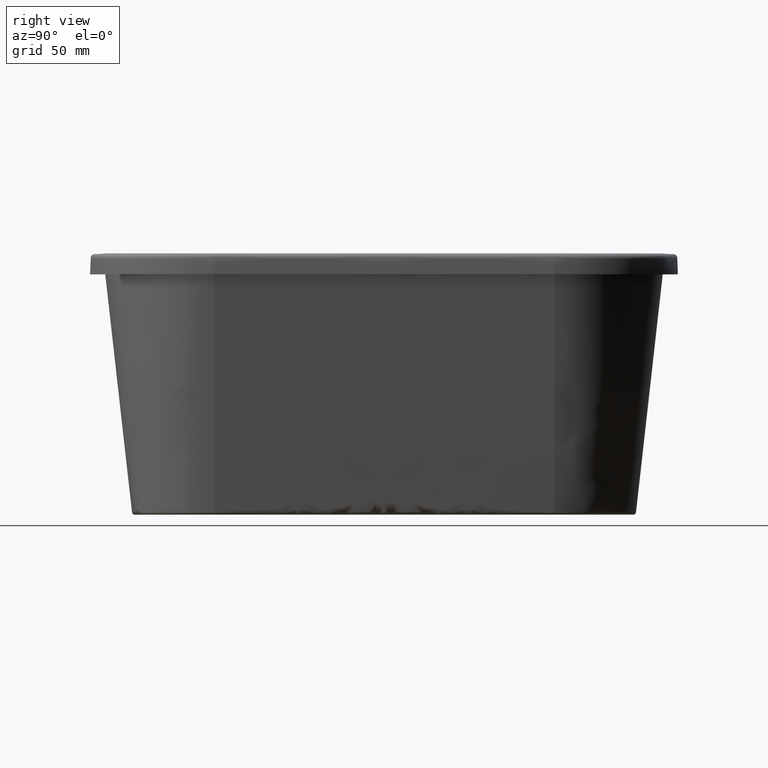
[diagram: clean part render]
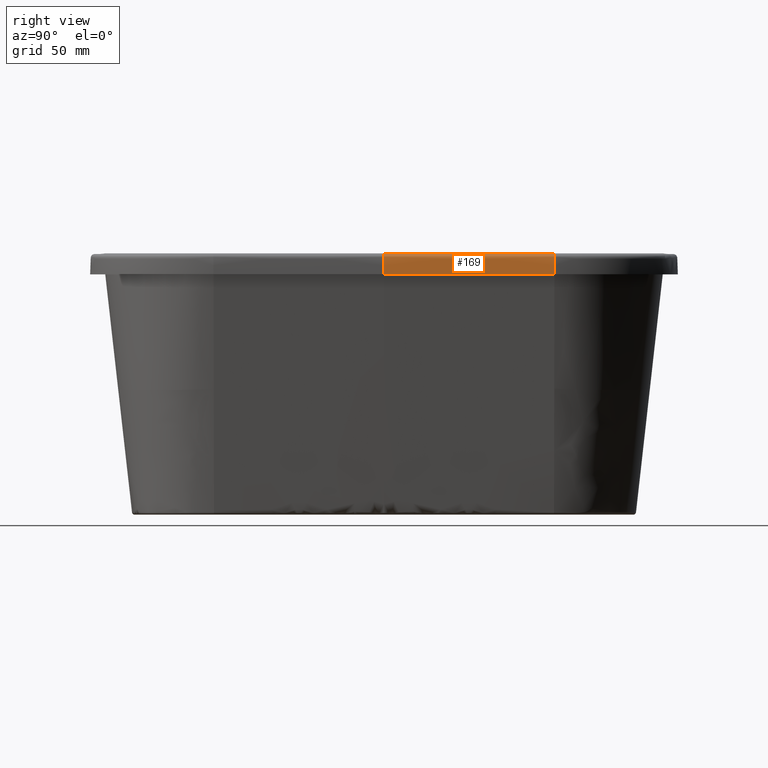
[diagram: same view with one face highlighted and labeled with its STEP entity id]
A machine part, right view. The second image highlights one B-rep face of the part: STEP entity #169.
In plain terms, the highlighted face is a freeform B-spline surface patch.
Its self-contained STEP definition (entity closure, byte-faithful):
#88=B_SPLINE_SURFACE_WITH_KNOTS('',3,3,((#77851,#77852,#77853,#77854,#77855,
#77856,#77857,#77858,#77859,#77860,#77861,#77862,#77863,#77864,#77865,#77866,
#77867,#77868,#77869,#77870,#77871,#77872,#77873,#77874,#77875,#77876,#77877,
#77878,#77879,#77880,#77881,#77882,#77883,#77884,#77885,#77886,#77887,#77888,
#77889,#77890,#77891,#77892,#77893,#77894,#77895,#77896,#77897,#77898,#77899,
#77900,#77901,#77902,#77903,#77904,#77905,#77906,#77907,#77908,#77909,#77910,
#77911,#77912),(#77913,#77914,#77915,#77916,#77917,#77918,#77919,#77920,
#77921,#77922,#77923,#77924,#77925,#77926,#77927,#77928,#77929,#77930,#77931,
#77932,#77933,#77934,#77935,#77936,#77937,#77938,#77939,#77940,#77941,#77942,
#77943,#77944,#77945,#77946,#77947,#77948,#77949,#77950,#77951,#77952,#77953,
#77954,#77955,#77956,#77957,#77958,#77959,#77960,#77961,#77962,#77963,#77964,
#77965,#77966,#77967,#77968,#77969,#77970,#77971,#77972,#77973,#77974),
(#77975,#77976,#77977,#77978,#77979,#77980,#77981,#77982,#77983,#77984,
#77985,#77986,#77987,#77988,#77989,#77990,#77991,#77992,#77993,#77994,#77995,
#77996,#77997,#77998,#77999,#78000,#78001,#78002,#78003,#78004,#78005,#78006,
#78007,#78008,#78009,#78010,#78011,#78012,#78013,#78014,#78015,#78016,#78017,
#78018,#78019,#78020,#78021,#78022,#78023,#78024,#78025,#78026,#78027,#78028,
#78029,#78030,#78031,#78032,#78033,#78034,#78035,#78036),(#78037,#78038,
#78039,#78040,#78041,#78042,#78043,#78044,#78045,#78046,#78047,#78048,#78049,
#78050,#78051,#78052,#78053,#78054,#78055,#78056,#78057,#78058,#78059,#78060,
#78061,#78062,#78063,#78064,#78065,#78066,#78067,#78068,#78069,#78070,#78071,
#78072,#78073,#78074,#78075,#78076,#78077,#78078,#78079,#78080,#78081,#78082,
#78083,#78084,#78085,#78086,#78087,#78088,#78089,#78090,#78091,#78092,#78093,
#78094,#78095,#78096,#78097,#78098)),.UNSPECIFIED.,.F.,.F.,.F.,(4,4),(4,
1,1,1,1,1,1,1,1,1,1,1,1,1,1,1,1,1,1,1,1,1,1,1,1,1,1,1,1,1,1,1,1,1,1,1,1,
1,1,1,1,1,1,1,1,1,1,1,1,1,1,1,1,1,1,1,1,1,1,4),(0.,1.),(0.,0.0625,0.064453125,
0.06640625,0.06689453125,0.0673828125,0.068359375,0.0703125,0.07421875,
0.078125,0.08203125,0.0859375,0.08984375,0.091796875,0.0927734375,0.09326171875,
0.09375,0.1015625,0.109375,0.1171875,0.119140625,0.12109375,0.123046875,
0.125,0.12890625,0.1328125,0.140625,0.1484375,0.15234375,0.1533203125,0.15380859375,
0.154296875,0.15478515625,0.1552734375,0.15625,0.1640625,0.171875,0.1796875,
0.18359375,0.1875,0.189453125,0.19140625,0.1953125,0.203125,0.2109375,0.21875,
0.2265625,0.23046875,0.234375,0.23486328125,0.2353515625,0.236328125,0.23828125,
0.2421875,0.25,0.3125,0.375,0.5,0.75,1.),.UNSPECIFIED.);
#169=ADVANCED_FACE('',(#274),#88,.F.);
#274=FACE_OUTER_BOUND('',#356,.T.);
#356=EDGE_LOOP('',(#730,#731,#732,#733));
#432=(
BOUNDED_CURVE()
B_SPLINE_CURVE(3,(#77822,#77823,#77824,#77825,#77826,#77827,#77828,#77829,
#77830,#77831,#77832,#77833,#77834,#77835,#77836,#77837,#77838,#77839,#77840,
#77841,#77842,#77843,#77844,#77845,#77846,#77847,#77848,#77849,#77850),
 .UNSPECIFIED.,.F.,.F.)
B_SPLINE_CURVE_WITH_KNOTS((4,1,1,1,1,1,1,1,1,1,1,1,1,1,1,1,1,1,1,1,1,1,
1,1,1,1,4),(0.,0.0062679695534729,0.0354953822136649,0.0647227948738568,
0.0793365012039528,0.0939502075340488,0.108563913864145,0.123177620194241,
0.181632445514625,0.240087270835009,0.298542096155393,0.302195522737917,
0.305848949320441,0.313155802485489,0.327769508815585,0.356996921475777,
0.386224334135969,0.415451746796161,0.444679159456353,0.473906572116544,
0.48852027844664,0.495827131611688,0.499480558194212,0.503133984776736,
0.517747691106832,0.532361397436928,1.),.UNSPECIFIED.)
CURVE()
GEOMETRIC_REPRESENTATION_ITEM()
RATIONAL_B_SPLINE_CURVE((1.,1.,1.,1.,1.,1.,1.,1.,1.,1.,1.,1.,1.,1.,1.,1.,
1.,1.,1.,1.,1.,1.,1.,1.,1.,1.,1.,1.,1.))
REPRESENTATION_ITEM('')
);
#730=ORIENTED_EDGE('',*,*,#1098,.F.);
#731=ORIENTED_EDGE('',*,*,#1097,.T.);
#732=ORIENTED_EDGE('',*,*,#1046,.T.);
#733=ORIENTED_EDGE('',*,*,#1099,.F.);
#891=VERTEX_POINT('',#68492);
#892=VERTEX_POINT('',#68517);
#921=VERTEX_POINT('',#77539);
#922=VERTEX_POINT('',#77821);
#1046=EDGE_CURVE('',#891,#892,#1202,.T.);
#1097=EDGE_CURVE('',#921,#891,#1241,.T.);
#1098=EDGE_CURVE('',#921,#922,#1242,.T.);
#1099=EDGE_CURVE('',#922,#892,#432,.T.);
#1202=B_SPLINE_CURVE_WITH_KNOTS('',3,(#68518,#68519,#68520,#68521),
 .UNSPECIFIED.,.F.,.F.,(4,4),(0.,1.),.UNSPECIFIED.);
#1241=B_SPLINE_CURVE_WITH_KNOTS('',3,(#77540,#77541,#77542,#77543,#77544,
#77545,#77546,#77547,#77548,#77549,#77550,#77551,#77552,#77553,#77554,#77555,
#77556,#77557,#77558,#77559,#77560,#77561,#77562,#77563,#77564,#77565,#77566,
#77567,#77568),.UNSPECIFIED.,.F.,.F.,(4,1,1,1,1,1,1,1,1,1,1,1,1,1,1,1,1,
1,1,1,1,1,1,1,1,1,4),(0.,0.00626796938565691,0.0354953820507846,0.0647227947159124,
0.0793365010484763,0.0939502073810401,0.108563913713604,0.123177620046168,
0.181632445376423,0.240087270706679,0.298542096036934,0.302195522620075,
0.305848949203216,0.313155802369498,0.327769508702062,0.35699692136719,
0.386224334032317,0.415451746697445,0.444679159362573,0.473906572027701,
0.488520278360265,0.495827131526547,0.499480558109688,0.503133984692828,
0.517747691025392,0.532361397357956,1.),.UNSPECIFIED.);
#1242=B_SPLINE_CURVE_WITH_KNOTS('',3,(#77817,#77818,#77819,#77820),
 .UNSPECIFIED.,.F.,.F.,(4,4),(0.,1.),.UNSPECIFIED.);
#68492=CARTESIAN_POINT('',(130.99997638351,4.04768811061255E-15,159.736));
#68517=CARTESIAN_POINT('',(129.981515976492,128.365492297838,159.736));
#68518=CARTESIAN_POINT('',(130.99997638351,1.30387714514235E-9,159.736));
#68519=CARTESIAN_POINT('',(130.999976493739,42.7885140732932,159.736));
#68520=CARTESIAN_POINT('',(130.660489691391,85.5770281447558,159.736));
#68521=CARTESIAN_POINT('',(129.981515976492,128.365492297838,159.736));
#77539=CARTESIAN_POINT('',(120.032524692342,3.21130737772097E-15,175.499999417168));
#77540=CARTESIAN_POINT('',(120.032524692105,1.58921637922237E-8,175.499999416658));
#77541=CARTESIAN_POINT('',(120.080643776294,1.57526057363984E-8,175.479001973218));
#77542=CARTESIAN_POINT('',(120.354498790368,1.49583540442881E-8,175.363783225234));
#77543=CARTESIAN_POINT('',(120.866428574609,1.34736249934875E-8,175.192549710164));
#77544=CARTESIAN_POINT('',(121.454844050627,1.17670456711849E-8,175.071671762564));
#77545=CARTESIAN_POINT('',(121.921127639884,1.04147003521238E-8,175.017974313482));
#77546=CARTESIAN_POINT('',(122.269717003985,9.40370697977144E-9,174.998677385468));
#77547=CARTESIAN_POINT('',(122.621629139484,8.38305466710487E-9,175.00047000131));
#77548=CARTESIAN_POINT('',(123.343864803046,6.28838647820373E-9,174.999529998691));
#77549=CARTESIAN_POINT('',(124.422221030493,3.16086046225905E-9,175.00011569263));
#77550=CARTESIAN_POINT('',(125.861960645019,-1.01477160008301E-9,175.000125333683));
#77551=CARTESIAN_POINT('',(126.851771399652,-3.88549262209104E-9,175.00024544739));
#77552=CARTESIAN_POINT('',(127.392109866102,-5.45261752415982E-9,174.999938148568));
#77553=CARTESIAN_POINT('',(127.51141931133,-5.79866363259463E-9,174.999945488132));
#77554=CARTESIAN_POINT('',(127.71487454556,-6.38872288405423E-9,175.001295745153));
#77555=CARTESIAN_POINT('',(128.096448028866,-7.49539319500059E-9,174.972777118));
#77556=CARTESIAN_POINT('',(128.678932104227,-9.1847467131867E-9,174.830349708915));
#77557=CARTESIAN_POINT('',(129.342086213888,-1.11080727949187E-8,174.479199506181));
#77558=CARTESIAN_POINT('',(129.90832146424,-1.27503042846033E-8,173.962344390068));
#77559=CARTESIAN_POINT('',(130.320790125999,-1.39465938797656E-8,173.327595876184));
#77560=CARTESIAN_POINT('',(130.515721250997,-1.45119437300334E-8,172.757569173706));
#77561=CARTESIAN_POINT('',(130.578375129514,-1.46936421363542E-8,172.360999202684));
#77562=CARTESIAN_POINT('',(130.592512027092,-1.47346614076671E-8,172.172841752611));
#77563=CARTESIAN_POINT('',(130.596638090143,-1.47466205913105E-8,172.057322503594));
#77564=CARTESIAN_POINT('',(130.601970584959,-1.47620977941632E-8,171.878309662545));
#77565=CARTESIAN_POINT('',(130.611088809491,-1.47885245715962E-8,171.608056786508));
#77566=CARTESIAN_POINT('',(130.744646158144,-1.51758848543349E-8,167.530784758819));
#77567=CARTESIAN_POINT('',(130.874275349483,-1.55518375954955E-8,163.573432496649));
#77568=CARTESIAN_POINT('',(130.99997638351,-1.59164140201007E-8,159.736));
#77817=CARTESIAN_POINT('',(120.032524690175,-2.73541744810757E-8,175.4999994175));
#77818=CARTESIAN_POINT('',(120.032524800612,42.7232564132963,175.4999994175));
#77819=CARTESIAN_POINT('',(119.693383141949,85.4465128498784,175.4999994175));
#77820=CARTESIAN_POINT('',(119.01509971421,128.191475573094,175.4999994175));
#77821=CARTESIAN_POINT('',(119.015099713321,128.19147557308,175.499999418118));
#77822=CARTESIAN_POINT('',(119.015099712251,128.191475573063,175.499999418355));
#77823=CARTESIAN_POINT('',(119.063214254827,128.192239061783,175.479001974314));
#77824=CARTESIAN_POINT('',(119.337043415671,128.196584223645,175.363783225681));
#77825=CARTESIAN_POINT('',(119.848924870239,128.20470683472,175.192549710164));
#77826=CARTESIAN_POINT('',(120.437284794277,128.214043017526,175.071671762564));
#77827=CARTESIAN_POINT('',(120.903524361958,128.221441376349,175.017974313482));
#77828=CARTESIAN_POINT('',(121.25208081593,128.226972322016,174.998677385468));
#77829=CARTESIAN_POINT('',(121.603959727598,128.232555988936,175.00047000131));
#77830=CARTESIAN_POINT('',(122.326127205291,128.24401544991,174.999529998691));
#77831=CARTESIAN_POINT('',(123.404381625722,128.261125351468,175.00011569263));
#77832=CARTESIAN_POINT('',(124.843985315227,128.283969196985,175.000125333683));
#77833=CARTESIAN_POINT('',(125.833702622373,128.299674178457,175.00024544739));
#77834=CARTESIAN_POINT('',(126.373990075768,128.308247540147,174.999938148568));
#77835=CARTESIAN_POINT('',(126.493288257057,128.310140581436,174.999945488132));
#77836=CARTESIAN_POINT('',(126.696724283191,128.313368734564,175.001295745153));
#77837=CARTESIAN_POINT('',(127.078261742355,128.319423027728,174.972777118));
#77838=CARTESIAN_POINT('',(127.660690825717,128.328665099072,174.830349708915));
#77839=CARTESIAN_POINT('',(128.323782327364,128.33918713367,174.479199506181));
#77840=CARTESIAN_POINT('',(128.88996411976,128.348171390583,173.962344390068));
#77841=CARTESIAN_POINT('',(129.30239384058,128.354715886751,173.327595876184));
#77842=CARTESIAN_POINT('',(129.497306562238,128.357808790816,172.757569173706));
#77843=CARTESIAN_POINT('',(129.559954525637,128.358802898019,172.360999202684));
#77844=CARTESIAN_POINT('',(129.574090088558,128.359027203235,172.172841752611));
#77845=CARTESIAN_POINT('',(129.57821576207,128.359092670036,172.057322503594));
#77846=CARTESIAN_POINT('',(129.583547753448,128.359177278868,171.878309662545));
#77847=CARTESIAN_POINT('',(129.592665117133,128.359321954552,171.608056786508));
#77848=CARTESIAN_POINT('',(129.726209856711,128.361441062347,167.530784758819));
#77849=CARTESIAN_POINT('',(129.85582680983,128.363497843442,163.573432496649));
#77850=CARTESIAN_POINT('',(129.981515976492,128.365492297838,159.736));
#77851=CARTESIAN_POINT('',(129.981515976492,128.365492297838,159.736));
#77852=CARTESIAN_POINT('',(129.85582680983,128.363497843442,163.573432496649));
#77853=CARTESIAN_POINT('',(129.726209856711,128.361441062347,167.530784758819));
#77854=CARTESIAN_POINT('',(129.592665117133,128.359321954552,171.608056786508));
#77855=CARTESIAN_POINT('',(129.583547753448,128.359177278868,171.878309662545));
#77856=CARTESIAN_POINT('',(129.57821576207,128.359092670036,172.057322503594));
#77857=CARTESIAN_POINT('',(129.574090088558,128.359027203235,172.172841752611));
#77858=CARTESIAN_POINT('',(129.559954525637,128.358802898019,172.360999202684));
#77859=CARTESIAN_POINT('',(129.497306562238,128.357808790816,172.757569173706));
#77860=CARTESIAN_POINT('',(129.30239384058,128.354715886751,173.327595876184));
#77861=CARTESIAN_POINT('',(128.88996411976,128.348171390583,173.962344390068));
#77862=CARTESIAN_POINT('',(128.323782327364,128.33918713367,174.479199506181));
#77863=CARTESIAN_POINT('',(127.660690825717,128.328665099072,174.830349708915));
#77864=CARTESIAN_POINT('',(127.078261742355,128.319423027728,174.972777118));
#77865=CARTESIAN_POINT('',(126.696724283191,128.313368734564,175.001295745153));
#77866=CARTESIAN_POINT('',(126.493288257057,128.310140581436,174.999945488132));
#77867=CARTESIAN_POINT('',(126.373990075768,128.308247540147,174.999938148568));
#77868=CARTESIAN_POINT('',(125.833702622373,128.299674178457,175.00024544739));
#77869=CARTESIAN_POINT('',(124.843985315227,128.283969196985,175.000125333683));
#77870=CARTESIAN_POINT('',(123.404381625722,128.261125351468,175.00011569263));
#77871=CARTESIAN_POINT('',(122.326127205291,128.24401544991,174.999529998691));
#77872=CARTESIAN_POINT('',(121.603959727598,128.232555988936,175.00047000131));
#77873=CARTESIAN_POINT('',(121.25208081593,128.226972322016,174.998677385468));
#77874=CARTESIAN_POINT('',(120.903524361958,128.221441376349,175.017974313482));
#77875=CARTESIAN_POINT('',(120.437284794277,128.214043017526,175.071671762564));
#77876=CARTESIAN_POINT('',(119.848924870239,128.20470683472,175.192549710164));
#77877=CARTESIAN_POINT('',(118.92430654775,128.190034853621,175.501851101058));
#77878=CARTESIAN_POINT('',(117.838684571669,128.172808042595,176.105210107233));
#77879=CARTESIAN_POINT('',(116.946474103287,128.158650314147,176.944696407813));
#77880=CARTESIAN_POINT('',(116.489169698172,128.151393739813,177.561013713681));
#77881=CARTESIAN_POINT('',(116.318641669046,128.148687775677,177.829989978799));
#77882=CARTESIAN_POINT('',(116.259008620468,128.14774150959,177.928550128868));
#77883=CARTESIAN_POINT('',(116.21549162745,128.147050975471,178.002820900404));
#77884=CARTESIAN_POINT('',(116.171929793872,128.146359729815,178.077078583078));
#77885=CARTESIAN_POINT('',(116.112161710956,128.145411320983,178.175598214142));
#77886=CARTESIAN_POINT('',(115.816855167013,128.140725352811,178.639937682852));
#77887=CARTESIAN_POINT('',(115.16074543422,128.13031410596,179.425137531349));
#77888=CARTESIAN_POINT('',(113.960165583101,128.11126312627,180.301087489298));
#77889=CARTESIAN_POINT('',(112.813571647692,128.093068803122,180.761889109409));
#77890=CARTESIAN_POINT('',(111.873531586492,128.07815210758,180.953159696761));
#77891=CARTESIAN_POINT('',(111.286764877042,128.06884120614,181.001622284464));
#77892=CARTESIAN_POINT('',(110.835946217219,128.061687548576,181.000574975427));
#77893=CARTESIAN_POINT('',(110.394458582115,128.054681957102,180.974194756112));
#77894=CARTESIAN_POINT('',(109.591287900875,128.041937125243,180.860251913716));
#77895=CARTESIAN_POINT('',(108.436766026665,128.023617000382,180.482243830425));
#77896=CARTESIAN_POINT('',(107.156357564646,128.003299288418,179.672063733402));
#77897=CARTESIAN_POINT('',(106.115657923138,127.98678531168,178.561064264965));
#77898=CARTESIAN_POINT('',(105.521924717061,127.977363864835,177.478812223344));
#77899=CARTESIAN_POINT('',(105.222182090151,127.972607504238,176.586487122861));
#77900=CARTESIAN_POINT('',(105.12176165866,127.971014017892,176.112787344255));
#77901=CARTESIAN_POINT('',(105.081072356705,127.970368353995,175.838881240767));
#77902=CARTESIAN_POINT('',(105.066321980895,127.970134292837,175.728899542347));
#77903=CARTESIAN_POINT('',(105.044247818267,127.96978401674,175.529659514555));
#77904=CARTESIAN_POINT('',(104.996510803007,127.96902651868,175.106359087034));
#77905=CARTESIAN_POINT('',(104.903342758031,127.967548114282,174.275707065365));
#77906=CARTESIAN_POINT('',(104.393598291177,127.959459413246,169.738960482586));
#77907=CARTESIAN_POINT('',(103.483551961713,127.945018662701,161.635289556129));
#77908=CARTESIAN_POINT('',(101.769366062526,127.91781770583,146.373315064477));
#77909=CARTESIAN_POINT('',(98.7695407389501,127.870216031306,119.664859704086));
#77910=CARTESIAN_POINT('',(94.4840759909839,127.802213639129,81.5099234749559));
#77911=CARTESIAN_POINT('',(91.055704192611,127.747811725387,50.985974491652));
#77912=CARTESIAN_POINT('',(89.3415182934245,127.720610768516,35.724));
#77913=CARTESIAN_POINT('',(131.33946318581,42.7885778862101,159.736));
#77914=CARTESIAN_POINT('',(131.213758195995,42.7875805962452,163.573432496649));
#77915=CARTESIAN_POINT('',(131.084124925248,42.7865521409689,167.530784758819));
#77916=CARTESIAN_POINT('',(130.95056337357,42.7854925203811,171.608056786508));
#77917=CARTESIAN_POINT('',(130.941444862089,42.7854201779864,171.878309662545));
#77918=CARTESIAN_POINT('',(130.936112199461,42.7853778709074,172.057322503594));
#77919=CARTESIAN_POINT('',(130.931986006563,42.7853451354466,172.172841752611));
#77920=CARTESIAN_POINT('',(130.9178486641,42.7852329757798,172.360999202684));
#77921=CARTESIAN_POINT('',(130.855192813877,42.7847358908927,172.757569173706));
#77922=CARTESIAN_POINT('',(130.660255554432,42.7831893415241,173.327595876184));
#77923=CARTESIAN_POINT('',(130.247773912361,42.7799168874793,173.962344390068));
#77924=CARTESIAN_POINT('',(129.681520842689,42.7754244762805,174.479199506181));
#77925=CARTESIAN_POINT('',(129.018345863691,42.7701631278445,174.830349708915));
#77926=CARTESIAN_POINT('',(128.435843457663,42.7655418013169,174.972777118));
#77927=CARTESIAN_POINT('',(128.054257966311,42.7625144642013,175.001295745153));
#77928=CARTESIAN_POINT('',(127.850796329381,42.7609002860445,174.999945488132));
#77929=CARTESIAN_POINT('',(127.731483129507,42.7599537058244,174.999938148568));
#77930=CARTESIAN_POINT('',(127.191127658705,42.7556667551686,175.00024544739));
#77931=CARTESIAN_POINT('',(126.20128575491,42.7478137701838,175.000125333683));
#77932=CARTESIAN_POINT('',(124.761500832043,42.7363911285102,175.00011569263));
#77933=CARTESIAN_POINT('',(123.683110668925,42.7278356392687,174.999529998691));
#77934=CARTESIAN_POINT('',(122.960852276739,42.7221055481428,175.00047000131));
#77935=CARTESIAN_POINT('',(122.60892906663,42.7193135389601,174.998677385468));
#77936=CARTESIAN_POINT('',(122.260328732486,42.7165478920632,175.017974313482));
#77937=CARTESIAN_POINT('',(121.794030469371,42.712848479819,175.071671762564));
#77938=CARTESIAN_POINT('',(121.205596476026,42.7081800945986,175.192549710164));
#77939=CARTESIAN_POINT('',(120.280861752274,42.7008436423099,175.501851101058));
#77940=CARTESIAN_POINT('',(119.195103105996,42.6922296946546,176.105210107233));
#77941=CARTESIAN_POINT('',(118.302780316213,42.685150384875,176.944696407813));
#77942=CARTESIAN_POINT('',(117.845418340522,42.6815218693374,177.561013713681));
#77943=CARTESIAN_POINT('',(117.674868843426,42.6801688021105,177.829989978799));
#77944=CARTESIAN_POINT('',(117.615228287576,42.6796956392874,177.928550128868));
#77945=CARTESIAN_POINT('',(117.571705816153,42.6793503504961,178.002820900404));
#77946=CARTESIAN_POINT('',(117.528138498526,42.679004705914,178.077078583078));
#77947=CARTESIAN_POINT('',(117.468362891338,42.678530471651,178.175598214142));
#77948=CARTESIAN_POINT('',(117.173019170915,42.6761873400934,178.639937682852));
#77949=CARTESIAN_POINT('',(116.516826839714,42.6709813890175,179.425137531349));
#77950=CARTESIAN_POINT('',(115.316095846218,42.6614552996223,180.301087489298));
#77951=CARTESIAN_POINT('',(114.169357564782,42.6523575654578,180.761889109409));
#77952=CARTESIAN_POINT('',(113.229199160859,42.6448987482457,180.953159696761));
#77953=CARTESIAN_POINT('',(112.642358582674,42.6402430045039,181.001622284464));
#77954=CARTESIAN_POINT('',(112.191483168773,42.6366659505907,181.000574975427));
#77955=CARTESIAN_POINT('',(111.749939954283,42.6331629343815,180.974194756112));
#77956=CARTESIAN_POINT('',(110.946668160964,42.6267901173615,180.860251913716));
#77957=CARTESIAN_POINT('',(109.792000942669,42.6176294783818,180.482243830425));
#77958=CARTESIAN_POINT('',(108.511431288558,42.6074699829844,179.672063733402));
#77959=CARTESIAN_POINT('',(107.470600632177,42.5992124749067,178.561064264965));
#77960=CARTESIAN_POINT('',(106.876792680346,42.5945014549835,177.478812223344));
#77961=CARTESIAN_POINT('',(106.577012318492,42.5921231249983,176.586487122861));
#77962=CARTESIAN_POINT('',(106.476579244958,42.5913263316767,176.112787344255));
#77963=CARTESIAN_POINT('',(106.43588482058,42.5910034794087,175.838881240767));
#77964=CARTESIAN_POINT('',(106.421132587828,42.5908864414637,175.728899542347));
#77965=CARTESIAN_POINT('',(106.399055646258,42.5907112923919,175.529659514555));
#77966=CARTESIAN_POINT('',(106.35131262133,42.5903325195228,175.106359087034));
#77967=CARTESIAN_POINT('',(106.258132847322,42.5895932707969,174.275707065365));
#77968=CARTESIAN_POINT('',(105.748324208152,42.585548665721,169.738960482586));
#77969=CARTESIAN_POINT('',(104.83816331191,42.5783278359859,161.635289556129));
#77970=CARTESIAN_POINT('',(103.123761611892,42.5647265015137,146.373315064477));
#77971=CARTESIAN_POINT('',(100.123558636861,42.5409241661873,119.664859704086));
#77972=CARTESIAN_POINT('',(95.8375543868159,42.5069208300068,81.5099234749559));
#77973=CARTESIAN_POINT('',(92.40875098678,42.4797181610624,50.985974491652));
#77974=CARTESIAN_POINT('',(90.6943492867621,42.4661168265902,35.724));
#77975=CARTESIAN_POINT('',(131.339463185883,-42.7885361988748,159.736));
#77976=CARTESIAN_POINT('',(131.213758196068,-42.78753890891,163.573432496649));
#77977=CARTESIAN_POINT('',(131.084124925322,-42.7865104536337,167.530784758819));
#77978=CARTESIAN_POINT('',(130.950563373644,-42.7854508330461,171.608056786508));
#77979=CARTESIAN_POINT('',(130.941444862163,-42.7853784906514,171.878309662545));
#77980=CARTESIAN_POINT('',(130.936112199534,-42.7853361835724,172.057322503594));
#77981=CARTESIAN_POINT('',(130.931986006637,-42.7853034481116,172.172841752611));
#77982=CARTESIAN_POINT('',(130.917848664174,-42.7851912884449,172.360999202684));
#77983=CARTESIAN_POINT('',(130.85519281395,-42.7846942035578,172.757569173706));
#77984=CARTESIAN_POINT('',(130.660255554506,-42.7831476541893,173.327595876184));
#77985=CARTESIAN_POINT('',(130.247773912435,-42.779875200145,173.962344390068));
#77986=CARTESIAN_POINT('',(129.681520842763,-42.7753827889467,174.479199506181));
#77987=CARTESIAN_POINT('',(129.018345863765,-42.7701214405113,174.830349708915));
#77988=CARTESIAN_POINT('',(128.435843457737,-42.7655001139843,174.972777118));
#77989=CARTESIAN_POINT('',(128.054257966384,-42.762472776869,175.001295745153));
#77990=CARTESIAN_POINT('',(127.850796329455,-42.7608585987124,174.999945488132));
#77991=CARTESIAN_POINT('',(127.731483129581,-42.7599120184924,174.999938148568));
#77992=CARTESIAN_POINT('',(127.191127658778,-42.7556250678371,175.00024544739));
#77993=CARTESIAN_POINT('',(126.201285754984,-42.7477720828532,175.000125333683));
#77994=CARTESIAN_POINT('',(124.761500832117,-42.7363494411809,175.00011569263));
#77995=CARTESIAN_POINT('',(123.683110668998,-42.7277939519404,174.999529998691));
#77996=CARTESIAN_POINT('',(122.960852276813,-42.7220638608152,175.00047000131));
#77997=CARTESIAN_POINT('',(122.608929066704,-42.7192718516329,174.998677385468));
#77998=CARTESIAN_POINT('',(122.26032873256,-42.7165062047362,175.017974313482));
#77999=CARTESIAN_POINT('',(121.794030469444,-42.7128067924925,175.071671762564));
#78000=CARTESIAN_POINT('',(121.2055964761,-42.7081384072726,175.192549710164));
#78001=CARTESIAN_POINT('',(120.280861752348,-42.7008019549848,175.501851101058));
#78002=CARTESIAN_POINT('',(119.19510310607,-42.6921880073305,176.105210107233));
#78003=CARTESIAN_POINT('',(118.302780316287,-42.6851086975518,176.944696407813));
#78004=CARTESIAN_POINT('',(117.845418340596,-42.6814801820146,177.561013713681));
#78005=CARTESIAN_POINT('',(117.6748688435,-42.6801271147878,177.829989978799));
#78006=CARTESIAN_POINT('',(117.615228287649,-42.6796539519648,177.928550128868));
#78007=CARTESIAN_POINT('',(117.571705816227,-42.6793086631735,178.002820900404));
#78008=CARTESIAN_POINT('',(117.5281384986,-42.6789630185915,178.077078583078));
#78009=CARTESIAN_POINT('',(117.468362891411,-42.6784887843285,178.175598214142));
#78010=CARTESIAN_POINT('',(117.173019170988,-42.6761456527712,178.639937682852));
#78011=CARTESIAN_POINT('',(116.516826839788,-42.6709397016959,179.425137531349));
#78012=CARTESIAN_POINT('',(115.316095846292,-42.6614136123018,180.301087489298));
#78013=CARTESIAN_POINT('',(114.169357564856,-42.6523158781384,180.761889109409));
#78014=CARTESIAN_POINT('',(113.229199160933,-42.6448570609271,180.953159696761));
#78015=CARTESIAN_POINT('',(112.642358582748,-42.6402013171859,181.001622284464));
#78016=CARTESIAN_POINT('',(112.191483168846,-42.6366242632731,181.000574975427));
#78017=CARTESIAN_POINT('',(111.749939954357,-42.6331212470644,180.974194756112));
#78018=CARTESIAN_POINT('',(110.946668161037,-42.6267484300451,180.860251913716));
#78019=CARTESIAN_POINT('',(109.792000942742,-42.6175877910664,180.482243830425));
#78020=CARTESIAN_POINT('',(108.511431288631,-42.6074282956703,179.672063733402));
#78021=CARTESIAN_POINT('',(107.470600632251,-42.5991707875935,178.561064264965));
#78022=CARTESIAN_POINT('',(106.876792680419,-42.5944597676709,177.478812223344));
#78023=CARTESIAN_POINT('',(106.577012318565,-42.592081437686,176.586487122861));
#78024=CARTESIAN_POINT('',(106.476579245031,-42.5912846443644,176.112787344255));
#78025=CARTESIAN_POINT('',(106.435884820653,-42.5909617920965,175.838881240767));
#78026=CARTESIAN_POINT('',(106.421132587901,-42.5908447541515,175.728899542347));
#78027=CARTESIAN_POINT('',(106.399055646331,-42.5906696050797,175.529659514555));
#78028=CARTESIAN_POINT('',(106.351312621403,-42.5902908322106,175.106359087034));
#78029=CARTESIAN_POINT('',(106.258132847395,-42.5895515834849,174.275707065365));
#78030=CARTESIAN_POINT('',(105.748324208226,-42.5855069784093,169.738960482586));
#78031=CARTESIAN_POINT('',(104.838163311983,-42.5782861486751,161.635289556129));
#78032=CARTESIAN_POINT('',(103.123761611965,-42.5646848142045,146.373315064477));
#78033=CARTESIAN_POINT('',(100.123558636934,-42.5408824788809,119.664859704086));
#78034=CARTESIAN_POINT('',(95.8375543868891,-42.5068791427044,81.5099234749559));
#78035=CARTESIAN_POINT('',(92.4087509868532,-42.4796764737631,50.985974491652));
#78036=CARTESIAN_POINT('',(90.6943492868352,-42.4660751392925,35.724));
#78037=CARTESIAN_POINT('',(129.981515976509,-128.365450614782,159.736));
#78038=CARTESIAN_POINT('',(129.855826809848,-128.363456160386,163.573432496649));
#78039=CARTESIAN_POINT('',(129.726209856729,-128.361399379291,167.530784758819));
#78040=CARTESIAN_POINT('',(129.592665117151,-128.359280271495,171.608056786508));
#78041=CARTESIAN_POINT('',(129.583547753466,-128.359135595812,171.878309662545));
#78042=CARTESIAN_POINT('',(129.578215762087,-128.359050986979,172.057322503594));
#78043=CARTESIAN_POINT('',(129.574090088576,-128.358985520178,172.172841752611));
#78044=CARTESIAN_POINT('',(129.559954525655,-128.358761214963,172.360999202684));
#78045=CARTESIAN_POINT('',(129.497306562255,-128.35776710776,172.757569173706));
#78046=CARTESIAN_POINT('',(129.302393840597,-128.354674203695,173.327595876184));
#78047=CARTESIAN_POINT('',(128.889964119777,-128.348129707527,173.962344390068));
#78048=CARTESIAN_POINT('',(128.323782327381,-128.339145450613,174.479199506181));
#78049=CARTESIAN_POINT('',(127.660690825734,-128.328623416016,174.830349708915));
#78050=CARTESIAN_POINT('',(127.078261742372,-128.319381344672,174.972777118));
#78051=CARTESIAN_POINT('',(126.696724283209,-128.313327051508,175.001295745153));
#78052=CARTESIAN_POINT('',(126.493288257074,-128.31009889838,174.999945488132));
#78053=CARTESIAN_POINT('',(126.373990075785,-128.308205857091,174.999938148568));
#78054=CARTESIAN_POINT('',(125.833702622391,-128.299632495401,175.00024544739));
#78055=CARTESIAN_POINT('',(124.843985315245,-128.283927513929,175.000125333683));
#78056=CARTESIAN_POINT('',(123.404381625739,-128.261083668412,175.00011569263));
#78057=CARTESIAN_POINT('',(122.326127205308,-128.243973766855,174.999529998691));
#78058=CARTESIAN_POINT('',(121.603959727616,-128.232514305881,175.00047000131));
#78059=CARTESIAN_POINT('',(121.252080815947,-128.226930638961,174.998677385468));
#78060=CARTESIAN_POINT('',(120.903524361975,-128.221399693294,175.017974313482));
#78061=CARTESIAN_POINT('',(120.437284794295,-128.214001334471,175.071671762564));
#78062=CARTESIAN_POINT('',(119.848924870257,-128.204665151665,175.192549710164));
#78063=CARTESIAN_POINT('',(118.924306547767,-128.189993170566,175.501851101058));
#78064=CARTESIAN_POINT('',(117.838684571686,-128.17276635954,176.105210107233));
#78065=CARTESIAN_POINT('',(116.946474103304,-128.158608631092,176.944696407813));
#78066=CARTESIAN_POINT('',(116.489169698189,-128.151352056758,177.561013713681));
#78067=CARTESIAN_POINT('',(116.318641669063,-128.148646092622,177.829989978799));
#78068=CARTESIAN_POINT('',(116.259008620485,-128.147699826536,177.928550128868));
#78069=CARTESIAN_POINT('',(116.215491627467,-128.147009292416,178.002820900404));
#78070=CARTESIAN_POINT('',(116.17192979389,-128.14631804676,178.077078583078));
#78071=CARTESIAN_POINT('',(116.112161710974,-128.145369637929,178.175598214142));
#78072=CARTESIAN_POINT('',(115.81685516703,-128.140683669756,178.639937682852));
#78073=CARTESIAN_POINT('',(115.160745434238,-128.130272422906,179.425137531349));
#78074=CARTESIAN_POINT('',(113.960165583118,-128.111221443216,180.301087489298));
#78075=CARTESIAN_POINT('',(112.813571647709,-128.093027120068,180.761889109409));
#78076=CARTESIAN_POINT('',(111.873531586509,-128.078110424526,180.953159696761));
#78077=CARTESIAN_POINT('',(111.286764877059,-128.068799523086,181.001622284464));
#78078=CARTESIAN_POINT('',(110.835946217236,-128.061645865523,181.000574975427));
#78079=CARTESIAN_POINT('',(110.394458582132,-128.054640274048,180.974194756112));
#78080=CARTESIAN_POINT('',(109.591287900892,-128.041895442189,180.860251913716));
#78081=CARTESIAN_POINT('',(108.436766026682,-128.023575317329,180.482243830425));
#78082=CARTESIAN_POINT('',(107.156357564663,-128.003257605365,179.672063733402));
#78083=CARTESIAN_POINT('',(106.115657923155,-127.986743628627,178.561064264965));
#78084=CARTESIAN_POINT('',(105.521924717079,-127.977322181782,177.478812223344));
#78085=CARTESIAN_POINT('',(105.222182090168,-127.972565821185,176.586487122861));
#78086=CARTESIAN_POINT('',(105.121761658677,-127.970972334838,176.112787344255));
#78087=CARTESIAN_POINT('',(105.081072356723,-127.970326670942,175.838881240767));
#78088=CARTESIAN_POINT('',(105.066321980913,-127.970092609784,175.728899542347));
#78089=CARTESIAN_POINT('',(105.044247818284,-127.969742333687,175.529659514555));
#78090=CARTESIAN_POINT('',(104.996510803024,-127.968984835627,175.106359087034));
#78091=CARTESIAN_POINT('',(104.903342758048,-127.967506431229,174.275707065365));
#78092=CARTESIAN_POINT('',(104.393598291195,-127.959417730193,169.738960482586));
#78093=CARTESIAN_POINT('',(103.48355196173,-127.944976979648,161.635289556129));
#78094=CARTESIAN_POINT('',(101.769366062544,-127.917776022777,146.373315064477));
#78095=CARTESIAN_POINT('',(98.7695407389674,-127.870174348254,119.664859704086));
#78096=CARTESIAN_POINT('',(94.4840759910011,-127.802171956077,81.5099234749559));
#78097=CARTESIAN_POINT('',(91.0557041926282,-127.747770042336,50.985974491652));
#78098=CARTESIAN_POINT('',(89.3415182934417,-127.720569085465,35.724));